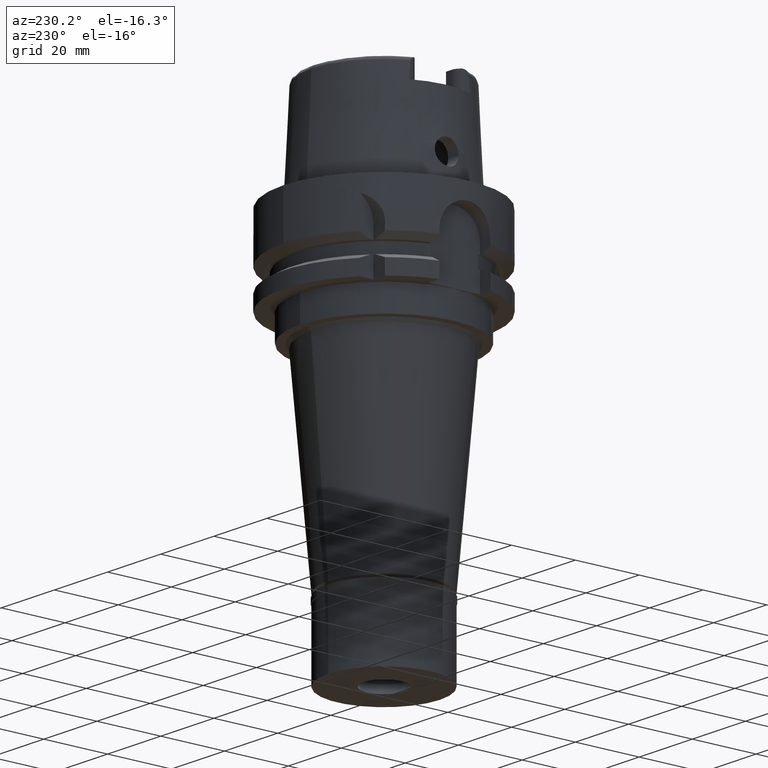
[diagram: clean part render]
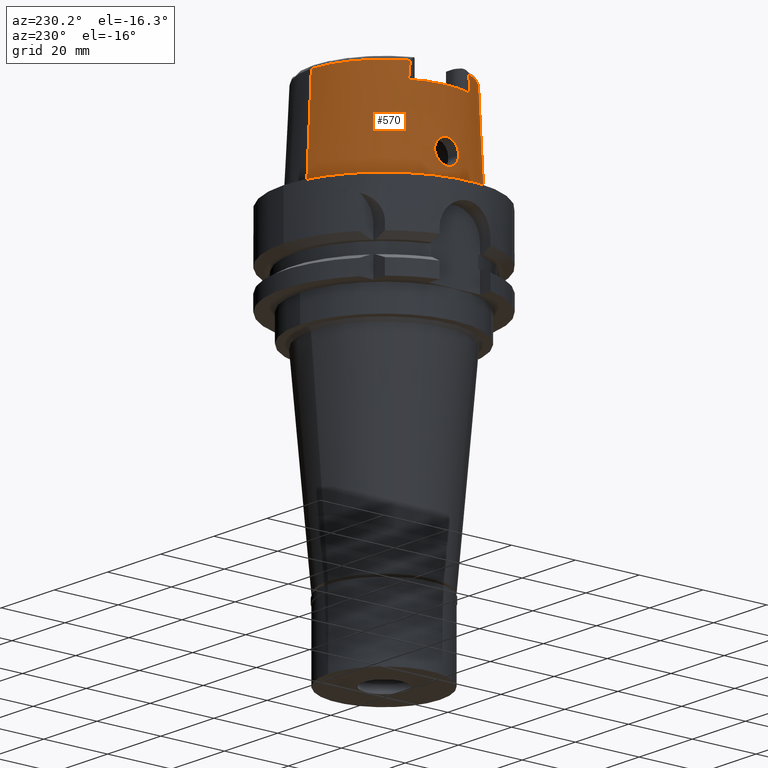
[diagram: same view with one face highlighted and labeled with its STEP entity id]
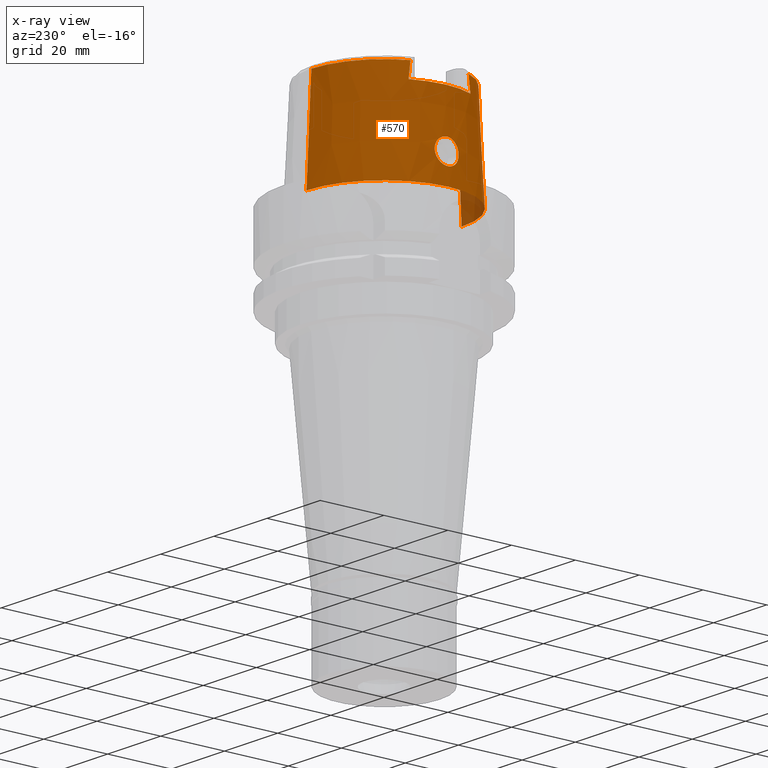
[diagram: x-ray of the same camera — body ghosted, the highlighted face saturated]
A machine part, auxiliary view. The second image highlights one B-rep face of the part: STEP entity #570.
The next image is the same camera in x-ray: the body ghosted, the highlighted face saturated — about 3% of this face is hidden behind the body in this view.
In plain terms, the highlighted conical surface has half-angle 2.862 deg.
Its self-contained STEP definition (entity closure, byte-faithful):
#63 = CARTESIAN_POINT ( 'NONE',  ( -23.66769040187653061, -0.9503256639060109201, 12.66622697786380947 ) ) ;
#87 = CARTESIAN_POINT ( 'NONE',  ( -23.57969795373879052, 3.750169386990195086, 8.779425274124708523 ) ) ;
#94 = CARTESIAN_POINT ( 'NONE',  ( -23.57140031500752997, -3.749702166341497112, 8.944810375322722606 ) ) ;
#127 = CARTESIAN_POINT ( 'NONE',  ( -23.55647646972081333, -3.749916970983111497, 9.238628573049389558 ) ) ;
#151 = CARTESIAN_POINT ( 'NONE',  ( -23.61419268207023592, -2.139982146958621989, 12.08001965717221182 ) ) ;
#174 = CARTESIAN_POINT ( 'NONE',  ( -23.54618766683737263, -3.289814391875022892, 10.81640524372257950 ) ) ;
#203 = EDGE_CURVE ( 'NONE', #4389, #3565, #2954, .T. ) ;
#288 = CARTESIAN_POINT ( 'NONE',  ( -23.76242428351605795, 3.132968351349483704, 6.939153937460234900 ) ) ;
#290 = CARTESIAN_POINT ( 'NONE',  ( -23.62276609582155018, 1.983578182770949105, 12.18277237706055338 ) ) ;
#292 = VERTEX_POINT ( 'NONE', #4358 ) ;
#314 = CARTESIAN_POINT ( 'NONE',  ( -23.56271390740696603, 3.748153444893398412, 9.121351048090634350 ) ) ;
#340 = CARTESIAN_POINT ( 'NONE',  ( -23.54012389794622706, 3.448956601825840629, 10.47224935710822180 ) ) ;
#372 = CARTESIAN_POINT ( 'NONE',  ( -23.93369581773708532, -2.055800950900913637, 5.863720659146291148 ) ) ;
#375 = CARTESIAN_POINT ( 'NONE',  ( -23.63218650553824318, 1.797535615938604447, 12.29167995536796809 ) ) ;
#399 = CARTESIAN_POINT ( 'NONE',  ( -23.87185901804911836, -2.515824761638977503, 6.218954143810046631 ) ) ;
#402 = CARTESIAN_POINT ( 'NONE',  ( -23.53977541936165707, 3.462018681142157828, 10.44117035441278318 ) ) ;
#420 = CARTESIAN_POINT ( 'NONE',  ( -20.86999859286000003, -9.150003160549998071, 30.54568941691999839 ) ) ;
#441 = AXIS2_PLACEMENT_3D ( 'NONE', #5415, #4155, #1229 ) ;
#482 = CARTESIAN_POINT ( 'NONE',  ( -24.00093171936894976, -1.364268406990795102, 5.506932367412503027 ) ) ;
#500 = CARTESIAN_POINT ( 'NONE',  ( -23.59495111184602578, 3.730346815743854183, 8.545404320888746241 ) ) ;
#506 = CARTESIAN_POINT ( 'NONE',  ( -23.53962588855881322, -3.467851857136494242, 10.42707474066484430 ) ) ;
#518 = CIRCLE ( 'NONE', #2617, 24.31503482328999866 ) ;
#529 = CARTESIAN_POINT ( 'NONE',  ( -23.68885207613558208, -3.449220939768877781, 7.528097105181524640 ) ) ;
#542 = DIRECTION ( 'NONE',  ( -0.9068002397791221636, -0.4215605829967106200, 0.0000000000000000000 ) ) ;
#558 = CARTESIAN_POINT ( 'NONE',  ( -23.58310336962523479, -2.663375539954143889, 11.63988439338337777 ) ) ;
#565 = EDGE_CURVE ( 'NONE', #1990, #3204, #4847, .T. ) ;
#570 = ADVANCED_FACE ( 'NONE', ( #2725, #4412 ), #2367, .T. ) ;
#584 = CARTESIAN_POINT ( 'NONE',  ( -23.53937226095564128, -3.627155002131112305, 9.960048277899494096 ) ) ;
#608 = CARTESIAN_POINT ( 'NONE',  ( -23.59430846912497515, -2.480476835661023394, 11.81510341640107775 ) ) ;
#674 = CARTESIAN_POINT ( 'NONE',  ( -23.97377877642007604, 1.681365096202520615, 5.647564756474773517 ) ) ;
#698 = CARTESIAN_POINT ( 'NONE',  ( -23.75741159964843874, 3.156884696773585741, 6.975867710176879122 ) ) ;
#700 = CARTESIAN_POINT ( 'NONE',  ( -23.61799458439294952, 2.072497021284433583, 12.12527372385519087 ) ) ;
#727 = CARTESIAN_POINT ( 'NONE',  ( -23.73367145062277928, 3.265762422241506258, 7.155637914804014343 ) ) ;
#728 = CARTESIAN_POINT ( 'NONE',  ( -23.56094557557477387, 3.013938382123438231, 11.24474286184505623 ) ) ;
#738 = CARTESIAN_POINT ( 'NONE',  ( 0.0000000000000000000, 0.0000000000000000000, 30.85992712280000205 ) ) ;
#751 = CARTESIAN_POINT ( 'NONE',  ( -24.03357619164686909, 0.9592489072341959799, 5.338999859574093954 ) ) ;
#778 = CARTESIAN_POINT ( 'NONE',  ( -23.64938743905960550, 1.406644316608940404, 12.47619330403823845 ) ) ;
#811 = CARTESIAN_POINT ( 'NONE',  ( -23.57090358750208381, 2.851754690814662485, 11.45077027659383617 ) ) ;
#820 = CARTESIAN_POINT ( 'NONE',  ( 0.0000000000000000000, 22.77198729362000051, 30.85992712280000205 ) ) ;
#832 = CARTESIAN_POINT ( 'NONE',  ( -23.94319852592155939, -1.974337125273970539, 5.811537566923592912 ) ) ;
#835 = CARTESIAN_POINT ( 'NONE',  ( -23.63437457385071028, 3.633527113112521523, 8.063950855224970127 ) ) ;
#863 = B_SPLINE_CURVE_WITH_KNOTS ( 'NONE', 3,
 ( #5027, #1543, #1602, #5429, #3723, #1135 ),
 .UNSPECIFIED., .F., .F.,
 ( 4, 1, 1, 4 ),
 ( 0.0000000000000000000, 0.3333333333333000081, 0.6666666666667000474, 1.000000000000000000 ),
 .UNSPECIFIED. ) ;
#881 = CARTESIAN_POINT ( 'NONE',  ( -20.87000000000000099, 9.332993010319471594, 29.07609872775757864 ) ) ;
#889 = CARTESIAN_POINT ( 'NONE',  ( -23.93769957345241295, -2.021866555033462021, 5.841675736146076048 ) ) ;
#915 = CARTESIAN_POINT ( 'NONE',  ( -23.54087112373454360, -3.656725263448183938, 9.840145305264822895 ) ) ;
#941 = CARTESIAN_POINT ( 'NONE',  ( -23.54158944786032137, -3.389292595201187641, 10.61707941564461244 ) ) ;
#968 = CARTESIAN_POINT ( 'NONE',  ( -23.73891983959075702, -3.241939151706500155, 7.111184369161401619 ) ) ;
#996 = CARTESIAN_POINT ( 'NONE',  ( -23.64567422987624923, -1.498965751455002104, 12.43752788590402147 ) ) ;
#1006 = DIRECTION ( 'NONE',  ( 0.0000000000000000000, 0.0000000000000000000, 1.000000000000000000 ) ) ;
#1010 = CARTESIAN_POINT ( 'NONE',  ( -23.84794387819802353, 2.668186244843139932, 6.364930592446491175 ) ) ;
#1021 = CARTESIAN_POINT ( 'NONE',  ( -23.57585100361574604, -2.780618126363379350, 11.51632094582919486 ) ) ;
#1133 = CARTESIAN_POINT ( 'NONE',  ( -23.99468300645517616, 1.443410085955254996, 5.538914600029249513 ) ) ;
#1135 = CARTESIAN_POINT ( 'NONE',  ( -20.86974104061000190, -9.111384044970998630, 30.85992599807000047 ) ) ;
#1144 = CARTESIAN_POINT ( 'NONE',  ( -20.87000040551000168, 9.145651821177999352, 30.58051936379000324 ) ) ;
#1161 = CARTESIAN_POINT ( 'NONE',  ( -23.74481897959704213, 3.215452673675529116, 7.070114503834180830 ) ) ;
#1163 = CARTESIAN_POINT ( 'NONE',  ( -23.64440555021088386, 1.531508509827326003, 12.42452972253978771 ) ) ;
#1191 = CARTESIAN_POINT ( 'NONE',  ( -23.90977037418161899, -2.249098662287306372, 5.996807719085947674 ) ) ;
#1193 = CARTESIAN_POINT ( 'NONE',  ( -23.53991170811254463, 3.456820900537971752, 10.45359368484435691 ) ) ;
#1201 = CARTESIAN_POINT ( 'NONE',  ( -20.87000040551000168, 9.149999089200999691, 30.54560915661999942 ) ) ;
#1212 = CARTESIAN_POINT ( 'NONE',  ( -23.93272843567197228, -2.063917717390349349, 5.869059823049095570 ) ) ;
#1216 = CARTESIAN_POINT ( 'NONE',  ( -23.65619875958059026, 1.222963370730530741, 12.54602230425616050 ) ) ;
#1225 = CARTESIAN_POINT ( 'NONE',  ( -20.86989332435999600, 9.124125753629000357, 30.75512689821000123 ) ) ;
#1229 = DIRECTION ( 'NONE',  ( 0.0000000000000000000, -1.000000000000000000, 0.0000000000000000000 ) ) ;
#1241 = CARTESIAN_POINT ( 'NONE',  ( -23.99739408137892482, -1.409812632702366342, 5.525071007720998573 ) ) ;
#1265 = CARTESIAN_POINT ( 'NONE',  ( -20.87000000000000099, 9.517059732219138368, 27.56089567555091335 ) ) ;
#1295 = CARTESIAN_POINT ( 'NONE',  ( -24.02794516353601040, -0.9491090674034523555, 5.369970285502420282 ) ) ;
#1355 = CARTESIAN_POINT ( 'NONE',  ( -23.69852667885466246, -3.411742357243737533, 7.443238562291754512 ) ) ;
#1380 = CARTESIAN_POINT ( 'NONE',  ( -20.86999859286000003, -9.150003160549998071, 30.54568941691999839 ) ) ;
#1382 = CARTESIAN_POINT ( 'NONE',  ( -23.58186774021430310, -2.683281682229325060, 11.61965271906412411 ) ) ;
#1384 = ORIENTED_EDGE ( 'NONE', *, *, #3020, .F. ) ;
#1386 = CARTESIAN_POINT ( 'NONE',  ( -20.86974110888999689, 9.111383544930001577, 30.85992740201000117 ) ) ;
#1406 = CARTESIAN_POINT ( 'NONE',  ( -23.59634444344172621, -3.723336540903766867, 8.538273357618820114 ) ) ;
#1433 = CARTESIAN_POINT ( 'NONE',  ( -23.70845751328030104, -3.372271016885750594, 7.357696286020742882 ) ) ;
#1492 = ORIENTED_EDGE ( 'NONE', *, *, #5427, .F. ) ;
#1517 = CARTESIAN_POINT ( 'NONE',  ( -23.75052452204057474, 3.189282837143626370, 7.026921599044746891 ) ) ;
#1543 = CARTESIAN_POINT ( 'NONE',  ( -20.86999859286000003, -9.145656142293999480, 30.58059766507999910 ) ) ;
#1571 = CARTESIAN_POINT ( 'NONE',  ( -23.54569396668894754, 3.703836825018103962, 9.599128881391628454 ) ) ;
#1600 = CARTESIAN_POINT ( 'NONE',  ( -23.79280889011996791, 2.981641885983719487, 6.722388114469925569 ) ) ;
#1602 = CARTESIAN_POINT ( 'NONE',  ( -20.86998097132000041, -9.136996582999001859, 30.65033328962000070 ) ) ;
#1650 = CARTESIAN_POINT ( 'NONE',  ( -23.67751368058000239, 0.2269480807099231445, 12.75000000000000000 ) ) ;
#1682 = CARTESIAN_POINT ( 'NONE',  ( -23.98791706812773228, -1.528498916515959705, 5.573749374674604518 ) ) ;
#1709 = CARTESIAN_POINT ( 'NONE',  ( -20.87000000000000099, -9.333063949578622953, 29.07564004622490472 ) ) ;
#1735 = EDGE_CURVE ( 'NONE', #3648, #2075, #3406, .T. ) ;
#1751 = ORIENTED_EDGE ( 'NONE', *, *, #5410, .F. ) ;
#1757 = CARTESIAN_POINT ( 'NONE',  ( -23.56547710963078401, 3.749604354209224777, 9.062028301880342696 ) ) ;
#1763 = CARTESIAN_POINT ( 'NONE',  ( -23.58476092321298978, -3.739584907786245971, 8.714541877439446083 ) ) ;
#1794 = CARTESIAN_POINT ( 'NONE',  ( -23.57803920227369687, -2.745100258834944018, 11.55521655726149177 ) ) ;
#1818 = CARTESIAN_POINT ( 'NONE',  ( -23.61122740987521240, -2.191637265244102295, 12.04351675564799962 ) ) ;
#1832 = CARTESIAN_POINT ( 'NONE',  ( -23.77860465557349201, 3.054959467272655882, 6.821714690238376733 ) ) ;
#1931 = VERTEX_POINT ( 'NONE', #5359 ) ;
#1940 = ORIENTED_EDGE ( 'NONE', *, *, #1735, .F. ) ;
#1966 = CARTESIAN_POINT ( 'NONE',  ( -23.84281375779366030, 2.698972350316839908, 6.396485871282167501 ) ) ;
#1968 = CARTESIAN_POINT ( 'NONE',  ( -23.55526259915404452, 3.738464471627682251, 9.299978913764082478 ) ) ;
#1975 = CARTESIAN_POINT ( 'NONE',  ( -20.86979790990000083, 9.115619349809001903, 30.82499136818000096 ) ) ;
#1982 = CARTESIAN_POINT ( 'NONE',  ( 0.0000000000000000000, -24.31503482328999866, -3.801403636316999971E-13 ) ) ;
#1989 = CARTESIAN_POINT ( 'NONE',  ( -23.59334009697580825, 2.501073114319998680, 11.79531174189736120 ) ) ;
#1990 = VERTEX_POINT ( 'NONE', #1386 ) ;
#2016 = CARTESIAN_POINT ( 'NONE',  ( -24.05252611746999847, 0.4684080826545497511, 5.250000000000004441 ) ) ;
#2017 = CARTESIAN_POINT ( 'NONE',  ( -23.53728692151640800, 3.562861642929748829, 10.19650487820317508 ) ) ;
#2049 = CARTESIAN_POINT ( 'NONE',  ( -23.54348962819571511, 3.353162528444417312, 10.67991225684006906 ) ) ;
#2066 = CARTESIAN_POINT ( 'NONE',  ( -20.87000040551000168, 9.149999089200999691, 30.54560915661999942 ) ) ;
#2071 = CARTESIAN_POINT ( 'NONE',  ( -24.00427867961442630, -1.320123428115958175, 5.489798429244984845 ) ) ;
#2074 = CARTESIAN_POINT ( 'NONE',  ( -23.63993648970238937, 1.633983311216026024, 12.37753807013686114 ) ) ;
#2075 = VERTEX_POINT ( 'NONE', #2416 ) ;
#2108 = ORIENTED_EDGE ( 'NONE', *, *, #4454, .F. ) ;
#2151 = CARTESIAN_POINT ( 'NONE',  ( -23.94775111546809399, -1.933588713521486868, 5.786788400982550762 ) ) ;
#2170 = CARTESIAN_POINT ( 'NONE',  ( -23.56699672376327115, 3.749977598658576827, 9.030790687659811411 ) ) ;
#2177 = CARTESIAN_POINT ( 'NONE',  ( -23.71854292225214067, -3.329989597450417893, 7.274458702743126892 ) ) ;
#2204 = CARTESIAN_POINT ( 'NONE',  ( -23.57934808772277435, -3.745536687795427699, 8.801868061840590229 ) ) ;
#2233 = CARTESIAN_POINT ( 'NONE',  ( -23.60270101051717617, -2.338396578205458098, 11.93226356035026114 ) ) ;
#2256 = CARTESIAN_POINT ( 'NONE',  ( -23.67751368057999883, 0.0000000000000000000, 12.75000000000000000 ) ) ;
#2267 = DIRECTION ( 'NONE',  ( 0.0000000000000000000, 0.0000000000000000000, -1.000000000000000000 ) ) ;
#2311 = CARTESIAN_POINT ( 'NONE',  ( 0.0000000000000000000, 0.0000000000000000000, 15.42996356139999925 ) ) ;
#2341 = CARTESIAN_POINT ( 'NONE',  ( -23.91123268140947289, 2.248799028186640570, 5.988941100294774778 ) ) ;
#2349 = CARTESIAN_POINT ( 'NONE',  ( -20.86974110888999689, 9.111383544930001577, 30.85992740201000117 ) ) ;
#2367 = CONICAL_SURFACE ( 'NONE', #3173, 23.54351105844999736, 0.04996004983832824653 ) ;
#2368 = CARTESIAN_POINT ( 'NONE',  ( -23.60596712640806061, 2.288652689664977480, 11.97316824281062431 ) ) ;
#2398 = CARTESIAN_POINT ( 'NONE',  ( -23.88272469426655675, 2.457339304542986547, 6.153424828017128867 ) ) ;
#2416 = CARTESIAN_POINT ( 'NONE',  ( -23.67751368057999883, 0.0000000000000000000, 12.75000000000000000 ) ) ;
#2423 = CARTESIAN_POINT ( 'NONE',  ( -23.58631876926666848, 2.613062619959054089, 11.68972872749576375 ) ) ;
#2424 = B_SPLINE_CURVE_WITH_KNOTS ( 'NONE', 3,
 ( #4563, #1650, #5451, #5371, #2877, #4170, #1216, #3290, #4507, #778, #4947, #3232, #1163, #2074, #375, #4475, #4589, #290, #3666, #4976, #700, #2906, #3746, #2368, #2488, #1989, #4537, #2423, #2454, #4913, #811, #728, #4102, #4138, #2049, #4079, #3315, #340, #1193, #402, #4999, #2017, #3696, #1571, #5403, #1968, #3642, #314, #1757, #2170, #87, #500, #4615, #835, #3844, #2514, #3446, #4193, #5139, #2937, #4451, #5402, #3231, #4788, #727, #1161, #1517, #698, #5318, #288, #2850, #1832, #1600, #4536, #4912, #3665, #1966, #3111, #1010, #2398, #2341, #2688, #4350, #674, #3289, #4946, #3613, #3259, #1133, #3518, #751, #2016, #5369 ),
 .UNSPECIFIED., .F., .F.,
 ( 4, 2, 2, 1, 1, 1, 2, 2, 2, 2, 1, 1, 2, 2, 2, 1, 1, 2, 2, 2, 2, 1, 1, 1, 2, 2, 2, 2, 1, 2, 2, 2, 2, 1, 1, 1, 2, 2, 2, 2, 1, 1, 2, 2, 2, 1, 1, 2, 2, 2, 2, 1, 1, 1, 2, 2, 4 ),
 ( 0.0000000000000000000, 0.06250000000000696665, 0.09375000000001043610, 0.1093750000000121014, 0.1171875000000129480, 0.1210937500000133782, 0.1230468750000135725, 0.1250000000000137668, 0.1562500000000175970, 0.1718750000000194844, 0.1796875000000204559, 0.1835937500000208722, 0.1855468750000209555, 0.1875000000000210387, 0.2187500000000217604, 0.2343750000000221212, 0.2421875000000224265, 0.2460937500000225098, 0.2500000000000225930, 0.3125000000000233147, 0.3437500000000234812, 0.3593750000000235922, 0.3671875000000235922, 0.3710937500000234257, 0.3730468750000233147, 0.3750000000000232037, 0.4375000000000188738, 0.4687500000000164868, 0.4843750000000150990, 0.4921875000000145994, 0.5000000000000140998, 0.5625000000000114353, 0.5937500000000098810, 0.6093750000000089928, 0.6171875000000085487, 0.6210937500000082157, 0.6230468750000081046, 0.6250000000000078826, 0.6562500000000057732, 0.6718750000000046629, 0.6796875000000039968, 0.6835937500000036637, 0.6855468750000036637, 0.6875000000000036637, 0.7187500000000034417, 0.7343750000000032196, 0.7421875000000032196, 0.7460937500000032196, 0.7500000000000032196, 0.8125000000000019984, 0.8437500000000014433, 0.8593750000000012212, 0.8671875000000011102, 0.8710937500000009992, 0.8730468750000009992, 0.8750000000000008882, 1.000000000000000000 ),
 .UNSPECIFIED. ) ;
#2448 = CARTESIAN_POINT ( 'NONE',  ( -24.05252611746999847, -0.2330175219645184981, 5.249999999999995559 ) ) ;
#2452 = AXIS2_PLACEMENT_3D ( 'NONE', #2657, #2267, #542 ) ;
#2454 = CARTESIAN_POINT ( 'NONE',  ( -23.58491409469607447, 2.635052964712680801, 11.66818904062327711 ) ) ;
#2485 = CARTESIAN_POINT ( 'NONE',  ( -23.92162947531752337, -2.156598069625101033, 5.930386810737426018 ) ) ;
#2488 = CARTESIAN_POINT ( 'NONE',  ( -23.59755016234468528, 2.431230191671947427, 11.85576782820222874 ) ) ;
#2514 = CARTESIAN_POINT ( 'NONE',  ( -23.66082307025282461, 3.550090196354453109, 7.788899138944374911 ) ) ;
#2536 = CARTESIAN_POINT ( 'NONE',  ( -23.85444957485202977, -2.628034503701374813, 6.324927793120160402 ) ) ;
#2591 = CARTESIAN_POINT ( 'NONE',  ( -23.77398056526138959, -3.077623836758039744, 6.856552763881391677 ) ) ;
#2613 = CARTESIAN_POINT ( 'NONE',  ( -23.75277925034306747, -3.178589229374225056, 7.006608756583574404 ) ) ;
#2617 = AXIS2_PLACEMENT_3D ( 'NONE', #3589, #1006, #5292 ) ;
#2635 = CIRCLE ( 'NONE', #441, 22.77198729362000051 ) ;
#2644 = CARTESIAN_POINT ( 'NONE',  ( -23.57450363916879610, -3.748430211927523459, 8.887825237922603705 ) ) ;
#2657 = CARTESIAN_POINT ( 'NONE',  ( 0.0000000000000000000, 0.0000000000000000000, 26.00000000000000000 ) ) ;
#2676 = CARTESIAN_POINT ( 'NONE',  ( -23.64681593463163978, -1.471115943453999764, 12.44955342254336728 ) ) ;
#2688 = CARTESIAN_POINT ( 'NONE',  ( -23.94765431427087776, 1.937851768469131652, 5.787135434677042944 ) ) ;
#2696 = CARTESIAN_POINT ( 'NONE',  ( -24.05252611746999847, 7.219293415727999012E-14, 5.250000000000000000 ) ) ;
#2697 = DIRECTION ( 'NONE',  ( 0.0000000000000000000, 0.0000000000000000000, -1.000000000000000000 ) ) ;
#2698 = CARTESIAN_POINT ( 'NONE',  ( -23.58264976010822522, -2.670680045230096944, 11.63249863261071049 ) ) ;
#2725 = FACE_OUTER_BOUND ( 'NONE', #5184, .T. ) ;
#2745 = ORIENTED_EDGE ( 'NONE', *, *, #4659, .T. ) ;
#2850 = CARTESIAN_POINT ( 'NONE',  ( -23.76356790336996738, 3.127473406056908267, 6.930828792497064406 ) ) ;
#2874 = CARTESIAN_POINT ( 'NONE',  ( -23.88986219127423993, -2.392977197026609826, 6.112105039700760578 ) ) ;
#2877 = CARTESIAN_POINT ( 'NONE',  ( -23.66467888944057307, 0.9475756481721802071, 12.63054958519959925 ) ) ;
#2886 = CARTESIAN_POINT ( 'NONE',  ( -20.86998013695999887, 9.136999222884000460, 30.65036981261999927 ) ) ;
#2906 = CARTESIAN_POINT ( 'NONE',  ( -23.61752725751876980, 2.081062378251179013, 12.11957346421965021 ) ) ;
#2933 = CARTESIAN_POINT ( 'NONE',  ( -23.97834960188370346, -1.635769806952087402, 5.623365223318335104 ) ) ;
#2937 = CARTESIAN_POINT ( 'NONE',  ( -23.68201342804705689, 3.474686825856279082, 7.589638447024114498 ) ) ;
#2954 = B_SPLINE_CURVE_WITH_KNOTS ( 'NONE', 3,
 ( #4133, #4166, #1709, #420 ),
 .UNSPECIFIED., .F., .F.,
 ( 4, 4 ),
 ( 0.0000000000000000000, 1.000000000000000000 ),
 .UNSPECIFIED. ) ;
#2960 = CARTESIAN_POINT ( 'NONE',  ( -24.03379777161552866, -0.8295365993111135650, 5.340879453395848131 ) ) ;
#2985 = CARTESIAN_POINT ( 'NONE',  ( -23.83838803508191262, -2.728123648052814154, 6.424141521491387508 ) ) ;
#3020 = EDGE_CURVE ( 'NONE', #1990, #3839, #4868, .T. ) ;
#3041 = CARTESIAN_POINT ( 'NONE',  ( -23.53882832073506393, -3.506283916826834268, 10.33048937354873509 ) ) ;
#3064 = CARTESIAN_POINT ( 'NONE',  ( -23.55712623751174561, -3.092166483065734717, 11.12507249914152929 ) ) ;
#3097 = CARTESIAN_POINT ( 'NONE',  ( -23.63959860660047596, -1.642256044551699823, 12.37229502711556606 ) ) ;
#3111 = CARTESIAN_POINT ( 'NONE',  ( -23.84640056449045886, 2.677479688281511727, 6.374387674265652670 ) ) ;
#3122 = CARTESIAN_POINT ( 'NONE',  ( -23.56144596810467107, -3.018213368134938346, 11.22950411453238750 ) ) ;
#3173 = AXIS2_PLACEMENT_3D ( 'NONE', #2311, #3979, #5385 ) ;
#3204 = VERTEX_POINT ( 'NONE', #820 ) ;
#3213 = EDGE_CURVE ( 'NONE', #3204, #1931, #4178, .T. ) ;
#3224 = CARTESIAN_POINT ( 'NONE',  ( -20.86999931535000385, -9.702216590572000143, 26.00000000000000000 ) ) ;
#3231 = CARTESIAN_POINT ( 'NONE',  ( -23.70640456187794598, 3.381804933284601855, 7.374888620043601684 ) ) ;
#3232 = CARTESIAN_POINT ( 'NONE',  ( -23.64841273167515823, 1.431321641841005077, 12.46610142221303441 ) ) ;
#3259 = CARTESIAN_POINT ( 'NONE',  ( -23.99367728941783184, 1.455759103902203977, 5.544090531635137431 ) ) ;
#3287 = CARTESIAN_POINT ( 'NONE',  ( -23.93530267996601424, -2.042228591580840469, 5.854865975300795000 ) ) ;
#3289 = CARTESIAN_POINT ( 'NONE',  ( -23.98090282593135925, 1.605315044224021825, 5.610190535986854243 ) ) ;
#3290 = CARTESIAN_POINT ( 'NONE',  ( -23.65232158309054711, 1.330154988884011180, 12.50643296395495874 ) ) ;
#3304 = CARTESIAN_POINT ( 'NONE',  ( -20.87000040551000168, 9.149999089200999691, 30.54560915661999942 ) ) ;
#3305 = EDGE_CURVE ( 'NONE', #1931, #4346, #518, .T. ) ;
#3311 = CARTESIAN_POINT ( 'NONE',  ( -24.04784403100638812, -0.4712449223006034416, 5.271782624374600879 ) ) ;
#3312 = EDGE_CURVE ( 'NONE', #4389, #292, #3587, .T. ) ;
#3314 = DIRECTION ( 'NONE',  ( 8.032179027582384478E-05, -0.04993928193351242217, -0.9987522523971473776 ) ) ;
#3315 = CARTESIAN_POINT ( 'NONE',  ( -23.54067330450969209, 3.430129260199413554, 10.51592010266261390 ) ) ;
#3339 = VECTOR ( 'NONE', #3437, 1000.000000000000000 ) ;
#3406 = B_SPLINE_CURVE_WITH_KNOTS ( 'NONE', 3,
 ( #3744, #2448, #3311, #2960, #1295, #5449, #3769, #2071, #482, #4996, #1241, #1682, #2933, #4613, #4135, #2151, #832, #889, #3287, #372, #1212, #2485, #1191, #2874, #4168, #399, #4191, #5062, #4638, #2536, #4223, #2985, #4694, #3851, #3529, #5230, #2591, #2613, #968, #2177, #1433, #1355, #3422, #529, #3876, #4773, #5115, #1406, #1763, #2204, #2644, #94, #4745, #127, #3453, #915, #584, #4337, #5146, #3041, #4721, #4280, #4799, #506, #941, #174, #3064, #3122, #5170, #4308, #1021, #1794, #3480, #1382, #2698, #558, #4382, #608, #2233, #3901, #1818, #151, #3824, #3502, #5196, #3097, #3922, #996, #2676, #63, #4360, #2256 ),
 .UNSPECIFIED., .F., .F.,
 ( 4, 2, 2, 1, 1, 2, 2, 2, 2, 1, 1, 2, 2, 2, 2, 1, 1, 2, 2, 2, 2, 2, 2, 1, 2, 2, 2, 2, 1, 2, 2, 2, 2, 1, 1, 1, 2, 2, 2, 2, 2, 1, 1, 2, 2, 2, 2, 2, 2, 1, 2, 2, 4 ),
 ( 0.0000000000000000000, 0.06250000000000162370, 0.09375000000000245637, 0.1093750000000028449, 0.1171875000000029976, 0.1210937500000030531, 0.1250000000000030809, 0.1562500000000029421, 0.1718750000000029421, 0.1796875000000029143, 0.1835937500000028866, 0.1855468750000028311, 0.1875000000000027478, 0.2187500000000045519, 0.2343750000000054123, 0.2421875000000057454, 0.2460937500000058842, 0.2480468750000059674, 0.2500000000000060507, 0.2812500000000065503, 0.2968750000000067724, 0.3125000000000069944, 0.3437500000000076050, 0.3593750000000079381, 0.3671875000000079936, 0.3750000000000079936, 0.4375000000000086597, 0.4687500000000089373, 0.4843750000000091038, 0.4921875000000091593, 0.5000000000000092149, 0.5625000000000095479, 0.5937500000000098810, 0.6093750000000101030, 0.6171875000000101030, 0.6210937500000103251, 0.6230468750000103251, 0.6250000000000102141, 0.6875000000000054401, 0.7187500000000032196, 0.7343750000000023315, 0.7421875000000019984, 0.7460937500000016653, 0.7480468750000014433, 0.7500000000000012212, 0.7812500000000008882, 0.7968750000000005551, 0.8125000000000003331, 0.8437499999999998890, 0.8593749999999996669, 0.8671874999999996669, 0.8749999999999996669, 1.000000000000000000 ),
 .UNSPECIFIED. ) ;
#3422 = CARTESIAN_POINT ( 'NONE',  ( -23.69194047247005841, -3.437410593466622810, 7.500766696584570070 ) ) ;
#3437 = DIRECTION ( 'NONE',  ( -8.032179027593385064E-05, 0.04993928193351242217, -0.9987522523971473776 ) ) ;
#3446 = CARTESIAN_POINT ( 'NONE',  ( -23.67204778675515797, 3.510868496057292454, 7.681596404079623852 ) ) ;
#3453 = CARTESIAN_POINT ( 'NONE',  ( -23.54807138943516520, -3.727233854521092127, 9.479752997808972736 ) ) ;
#3480 = CARTESIAN_POINT ( 'NONE',  ( -23.58070260342462987, -2.702068654046970941, 11.60036284805979889 ) ) ;
#3502 = CARTESIAN_POINT ( 'NONE',  ( -23.62804747543193784, -1.887971471035504889, 12.24241216139015975 ) ) ;
#3518 = CARTESIAN_POINT ( 'NONE',  ( -23.99508415481865242, 1.438458795708057902, 5.536851156630017812 ) ) ;
#3529 = CARTESIAN_POINT ( 'NONE',  ( -23.79569839259628239, -2.967380796572100632, 6.706323345979764206 ) ) ;
#3560 = VERTEX_POINT ( 'NONE', #3848 ) ;
#3565 = VERTEX_POINT ( 'NONE', #1380 ) ;
#3587 = CIRCLE ( 'NONE', #2452, 23.01499170873999134 ) ;
#3589 = CARTESIAN_POINT ( 'NONE',  ( 0.0000000000000000000, 0.0000000000000000000, -6.821210263297000155E-13 ) ) ;
#3613 = CARTESIAN_POINT ( 'NONE',  ( -23.99215633036991235, 1.474307707147990421, 5.551923259653967158 ) ) ;
#3642 = CARTESIAN_POINT ( 'NONE',  ( -23.55873676375492920, 3.744916830425732091, 9.210482356261170622 ) ) ;
#3648 = VERTEX_POINT ( 'NONE', #2696 ) ;
#3661 = ORIENTED_EDGE ( 'NONE', *, *, #565, .T. ) ;
#3665 = CARTESIAN_POINT ( 'NONE',  ( -23.83743598511618700, 2.731006983952516620, 6.429831926619785420 ) ) ;
#3666 = CARTESIAN_POINT ( 'NONE',  ( -23.62000973690111749, 2.035275439202642644, 12.14971480439079166 ) ) ;
#3696 = CARTESIAN_POINT ( 'NONE',  ( -23.53850369563388867, 3.633734160851117334, 9.958084870862036198 ) ) ;
#3723 = CARTESIAN_POINT ( 'NONE',  ( -20.86979783672000011, -9.115619593984000346, 30.82499209968999665 ) ) ;
#3744 = CARTESIAN_POINT ( 'NONE',  ( -24.05252611746999847, 7.219293415727999012E-14, 5.250000000000000000 ) ) ;
#3746 = CARTESIAN_POINT ( 'NONE',  ( -23.61157421355118657, 2.189743312326709379, 12.04674986831707884 ) ) ;
#3769 = CARTESIAN_POINT ( 'NONE',  ( -24.01170417611533381, -1.216768086637039392, 5.451919543087218045 ) ) ;
#3824 = CARTESIAN_POINT ( 'NONE',  ( -23.62264415172606036, -1.991700683020703355, 12.17959228529857540 ) ) ;
#3835 = CARTESIAN_POINT ( 'NONE',  ( 0.002481821280839999633, 22.77198688789000158, 30.85992712280000205 ) ) ;
#3839 = VERTEX_POINT ( 'NONE', #3304 ) ;
#3844 = CARTESIAN_POINT ( 'NONE',  ( -23.65175920629128115, 3.579641106531947781, 7.880749639617568469 ) ) ;
#3848 = CARTESIAN_POINT ( 'NONE',  ( -20.86974104061000190, -9.111384044970998630, 30.85992599807000047 ) ) ;
#3851 = CARTESIAN_POINT ( 'NONE',  ( -23.80285085270099898, -2.929263162929364839, 6.657838880995284647 ) ) ;
#3855 = ORIENTED_EDGE ( 'NONE', *, *, #3213, .T. ) ;
#3876 = CARTESIAN_POINT ( 'NONE',  ( -23.65783550932287937, -3.565124454535288034, 7.806570528668922648 ) ) ;
#3901 = CARTESIAN_POINT ( 'NONE',  ( -23.60552529590774284, -2.290077384279540329, 11.97015382065106515 ) ) ;
#3922 = CARTESIAN_POINT ( 'NONE',  ( -23.64326130477078891, -1.556617199445934796, 12.41180878491042527 ) ) ;
#3979 = DIRECTION ( 'NONE',  ( 0.0000000000000000000, 0.0000000000000000000, -1.000000000000000000 ) ) ;
#3984 = ORIENTED_EDGE ( 'NONE', *, *, #3312, .T. ) ;
#4079 = CARTESIAN_POINT ( 'NONE',  ( -23.54198930544270141, 3.390534170926536195, 10.60379308699728185 ) ) ;
#4102 = CARTESIAN_POINT ( 'NONE',  ( -23.54997999185222923, 3.214026229454676198, 10.93586780750588439 ) ) ;
#4109 = EDGE_CURVE ( 'NONE', #4426, #4346, #5025, .T. ) ;
#4133 = CARTESIAN_POINT ( 'NONE',  ( -20.86999931535000385, -9.702216590572000143, 26.00000000000000000 ) ) ;
#4135 = CARTESIAN_POINT ( 'NONE',  ( -23.95664189684892875, -1.852136307566618623, 5.738701566758217965 ) ) ;
#4138 = CARTESIAN_POINT ( 'NONE',  ( -23.54698670297278795, 3.273566429523749655, 10.83288825706210723 ) ) ;
#4155 = DIRECTION ( 'NONE',  ( 0.0000000000000000000, 0.0000000000000000000, -1.000000000000000000 ) ) ;
#4160 = CARTESIAN_POINT ( 'NONE',  ( 0.0000000000000000000, -22.77198729362000051, 30.85992712280000205 ) ) ;
#4166 = CARTESIAN_POINT ( 'NONE',  ( -20.87000000000000099, -9.517135092919289718, 27.56041024058491118 ) ) ;
#4168 = CARTESIAN_POINT ( 'NONE',  ( -23.88287287510454604, -2.441782404081967783, 6.153149137530356860 ) ) ;
#4170 = CARTESIAN_POINT ( 'NONE',  ( -23.65917826466652585, 1.131066160355169270, 12.57592810551329343 ) ) ;
#4178 = LINE ( 'NONE', #3835, #3339 ) ;
#4191 = CARTESIAN_POINT ( 'NONE',  ( -23.86621961882118370, -2.553053626255512132, 6.252916213008275825 ) ) ;
#4193 = CARTESIAN_POINT ( 'NONE',  ( -23.67782269714313870, 3.490050184528276311, 7.627948455369550018 ) ) ;
#4223 = CARTESIAN_POINT ( 'NONE',  ( -23.85332124833040979, -2.635094538856578072, 6.331885278341593981 ) ) ;
#4245 = CARTESIAN_POINT ( 'NONE',  ( -20.87000000000000099, 9.702213322398998585, 26.00000000000000000 ) ) ;
#4255 = CARTESIAN_POINT ( 'NONE',  ( -0.002481821280835999795, -22.77198688789000158, 30.85992712280000205 ) ) ;
#4280 = CARTESIAN_POINT ( 'NONE',  ( -23.53940178877574851, -3.477400120878287648, 10.40365610234418092 ) ) ;
#4308 = CARTESIAN_POINT ( 'NONE',  ( -23.57160089511884138, -2.849869561285240938, 11.43835529650154648 ) ) ;
#4337 = CARTESIAN_POINT ( 'NONE',  ( -23.53847580546924689, -3.573511052607643901, 10.13858696779676549 ) ) ;
#4346 = VERTEX_POINT ( 'NONE', #1982 ) ;
#4350 = CARTESIAN_POINT ( 'NONE',  ( -23.95873813391585117, 1.834456126082666394, 5.727307940470042880 ) ) ;
#4358 = CARTESIAN_POINT ( 'NONE',  ( -20.87000000000000099, 9.702213322398998585, 26.00000000000000000 ) ) ;
#4360 = CARTESIAN_POINT ( 'NONE',  ( -23.67751368057999173, -0.4547736024333112748, 12.75000000000000000 ) ) ;
#4381 = DIRECTION ( 'NONE',  ( -0.9164655183265837390, 0.4001136759951928745, 0.0000000000000000000 ) ) ;
#4382 = CARTESIAN_POINT ( 'NONE',  ( -23.58882052790281492, -2.571358099918259033, 11.73234150488228344 ) ) ;
#4389 = VERTEX_POINT ( 'NONE', #3224 ) ;
#4412 = FACE_BOUND ( 'NONE', #4982, .T. ) ;
#4426 = VERTEX_POINT ( 'NONE', #4160 ) ;
#4451 = CARTESIAN_POINT ( 'NONE',  ( -23.68304057078728420, 3.470889016974362917, 7.580326925273792149 ) ) ;
#4454 = EDGE_CURVE ( 'NONE', #3839, #292, #4561, .T. ) ;
#4475 = CARTESIAN_POINT ( 'NONE',  ( -23.62942877858328927, 1.853682844788196338, 12.26049491775781952 ) ) ;
#4507 = CARTESIAN_POINT ( 'NONE',  ( -23.65028272303975498, 1.383707002448931078, 12.48544544609903184 ) ) ;
#4536 = CARTESIAN_POINT ( 'NONE',  ( -23.81419323770735019, 2.864596055950406228, 6.579175657844320568 ) ) ;
#4537 = CARTESIAN_POINT ( 'NONE',  ( -23.58842558320542437, 2.579878194627069465, 11.72183518825643844 ) ) ;
#4561 = B_SPLINE_CURVE_WITH_KNOTS ( 'NONE', 3,
 ( #2066, #881, #1265, #4245 ),
 .UNSPECIFIED., .F., .F.,
 ( 4, 4 ),
 ( 0.0000000000000000000, 1.000000000000000000 ),
 .UNSPECIFIED. ) ;
#4563 = CARTESIAN_POINT ( 'NONE',  ( -23.67751368057999883, 0.0000000000000000000, 12.75000000000000000 ) ) ;
#4589 = CARTESIAN_POINT ( 'NONE',  ( -23.62503058980052373, 1.939940969970356699, 12.20939960623122289 ) ) ;
#4603 = ORIENTED_EDGE ( 'NONE', *, *, #3305, .T. ) ;
#4613 = CARTESIAN_POINT ( 'NONE',  ( -23.96228322081985240, -1.797894771618081311, 5.708526058238286183 ) ) ;
#4615 = CARTESIAN_POINT ( 'NONE',  ( -23.62377561286702488, 3.662492822422291017, 8.185409627478675176 ) ) ;
#4638 = CARTESIAN_POINT ( 'NONE',  ( -23.85643976684484713, -2.615513920697848604, 6.312684686289741443 ) ) ;
#4659 = EDGE_CURVE ( 'NONE', #4426, #3560, #2635, .T. ) ;
#4674 = AXIS2_PLACEMENT_3D ( 'NONE', #738, #2697, #4381 ) ;
#4694 = CARTESIAN_POINT ( 'NONE',  ( -23.82423319363426018, -2.811394049109861015, 6.515292966782779693 ) ) ;
#4721 = CARTESIAN_POINT ( 'NONE',  ( -23.53920756976016548, -3.486218784516399882, 10.38174248039706526 ) ) ;
#4745 = CARTESIAN_POINT ( 'NONE',  ( -23.56998770108802077, -3.750010121851890865, 8.971643345777005507 ) ) ;
#4773 = CARTESIAN_POINT ( 'NONE',  ( -23.63430709036925137, -3.637372640996063833, 8.055071030063478688 ) ) ;
#4788 = CARTESIAN_POINT ( 'NONE',  ( -23.72659117252371530, 3.296595844643833040, 7.211500981803462551 ) ) ;
#4799 = CARTESIAN_POINT ( 'NONE',  ( -23.53953830894594290, -3.471472262072105242, 10.41825328767338377 ) ) ;
#4815 = ORIENTED_EDGE ( 'NONE', *, *, #203, .F. ) ;
#4847 = CIRCLE ( 'NONE', #4674, 22.77198729362000407 ) ;
#4868 = B_SPLINE_CURVE_WITH_KNOTS ( 'NONE', 3,
 ( #2349, #1975, #1225, #2886, #1144, #1201 ),
 .UNSPECIFIED., .F., .F.,
 ( 4, 1, 1, 4 ),
 ( 0.0000000000000000000, 0.3333333333333000081, 0.6666666666667000474, 1.000000000000000000 ),
 .UNSPECIFIED. ) ;
#4912 = CARTESIAN_POINT ( 'NONE',  ( -23.82490491044294956, 2.804306900989965268, 6.509012968158550905 ) ) ;
#4913 = CARTESIAN_POINT ( 'NONE',  ( -23.58429707437747425, 2.644661622755694275, 11.65867690194880879 ) ) ;
#4946 = CARTESIAN_POINT ( 'NONE',  ( -23.98852074148146585, 1.517759262561744649, 5.570685814060414742 ) ) ;
#4947 = CARTESIAN_POINT ( 'NONE',  ( -23.64878580822493248, 1.421932379480714825, 12.46996778496181690 ) ) ;
#4976 = CARTESIAN_POINT ( 'NONE',  ( -23.61880391537559376, 2.057588275291017954, 12.13510928703250613 ) ) ;
#4977 = ORIENTED_EDGE ( 'NONE', *, *, #4109, .F. ) ;
#4982 = EDGE_LOOP ( 'NONE', ( #1492, #1940 ) ) ;
#4996 = CARTESIAN_POINT ( 'NONE',  ( -23.99866383373813505, -1.393662127845874732, 5.518555523126685181 ) ) ;
#4999 = CARTESIAN_POINT ( 'NONE',  ( -23.53972063624943800, 3.464158001257019226, 10.43602610361603311 ) ) ;
#5025 = LINE ( 'NONE', #4255, #5379 ) ;
#5027 = CARTESIAN_POINT ( 'NONE',  ( -20.86999859286000003, -9.150003160549998071, 30.54568941691999839 ) ) ;
#5062 = CARTESIAN_POINT ( 'NONE',  ( -23.85940849599655778, -2.596745478253910555, 6.294460855049051062 ) ) ;
#5115 = CARTESIAN_POINT ( 'NONE',  ( -23.60507725592529127, -3.706708536380197927, 8.418597000137454600 ) ) ;
#5139 = CARTESIAN_POINT ( 'NONE',  ( -23.68033249133872786, 3.480867105898363789, 7.604961491941358176 ) ) ;
#5146 = CARTESIAN_POINT ( 'NONE',  ( -23.53836553739652260, -3.544368480738068872, 10.22752641936620499 ) ) ;
#5170 = CARTESIAN_POINT ( 'NONE',  ( -23.56893587454626626, -2.893657321895163115, 11.38614698552265381 ) ) ;
#5184 = EDGE_LOOP ( 'NONE', ( #2108, #1384, #3661, #3855, #4603, #4977, #2745, #1751, #4815, #3984 ) ) ;
#5196 = CARTESIAN_POINT ( 'NONE',  ( -23.63580597689379559, -1.725333418007516384, 12.33009276472145466 ) ) ;
#5230 = CARTESIAN_POINT ( 'NONE',  ( -23.78134344613289386, -3.041179219895342456, 6.805112682268384283 ) ) ;
#5292 = DIRECTION ( 'NONE',  ( 0.0000000000000000000, 1.000000000000000000, 0.0000000000000000000 ) ) ;
#5318 = CARTESIAN_POINT ( 'NONE',  ( -23.76041262107118968, 3.142590146864464806, 6.953856223802067582 ) ) ;
#5359 = CARTESIAN_POINT ( 'NONE',  ( 0.0000000000000000000, 24.31503482328999866, -6.821210263297000155E-13 ) ) ;
#5369 = CARTESIAN_POINT ( 'NONE',  ( -24.05252611746999847, 7.219293415727999012E-14, 5.250000000000000000 ) ) ;
#5371 = CARTESIAN_POINT ( 'NONE',  ( -23.66773479209282272, 0.8256619546915794361, 12.66003959618561225 ) ) ;
#5379 = VECTOR ( 'NONE', #3314, 1000.000000000000000 ) ;
#5385 = DIRECTION ( 'NONE',  ( 0.0000000000000000000, -1.000000000000000000, 0.0000000000000000000 ) ) ;
#5402 = CARTESIAN_POINT ( 'NONE',  ( -23.69435245298255310, 3.428900178022739276, 7.478175888400887317 ) ) ;
#5403 = CARTESIAN_POINT ( 'NONE',  ( -23.54898490868709615, 3.721187711107732277, 9.479247155445788664 ) ) ;
#5410 = EDGE_CURVE ( 'NONE', #3565, #3560, #863, .T. ) ;
#5415 = CARTESIAN_POINT ( 'NONE',  ( 0.0000000000000000000, 0.0000000000000000000, 30.85992712280000205 ) ) ;
#5427 = EDGE_CURVE ( 'NONE', #2075, #3648, #2424, .T. ) ;
#5429 = CARTESIAN_POINT ( 'NONE',  ( -20.86989310975999601, -9.124125559541001351, 30.75513691727000065 ) ) ;
#5449 = CARTESIAN_POINT ( 'NONE',  ( -24.01741046899286047, -1.127680563696879634, 5.423033060852952225 ) ) ;
#5451 = CARTESIAN_POINT ( 'NONE',  ( -23.67506895845820836, 0.4634979685582404918, 12.72935646853835934 ) ) ;